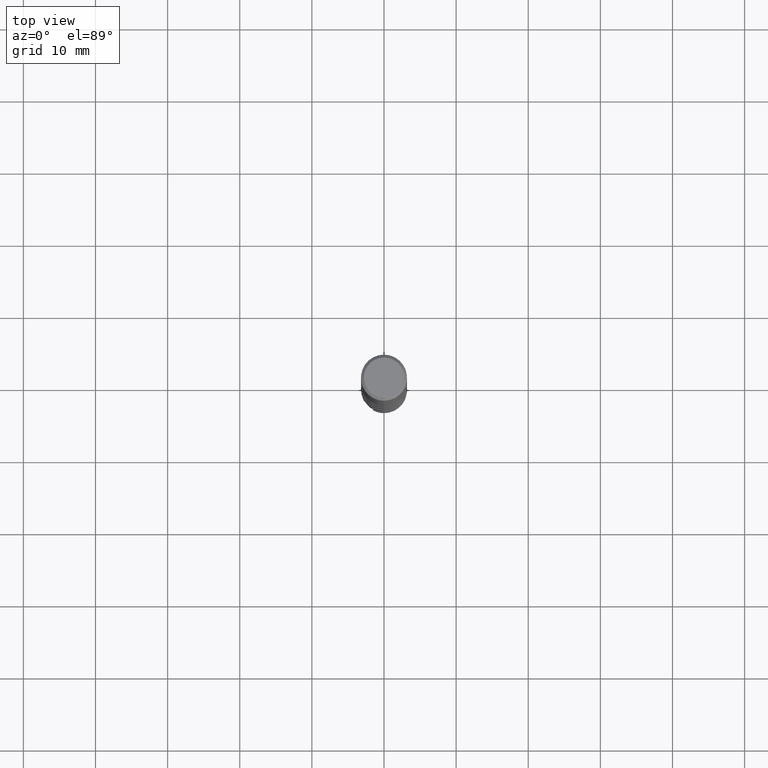
[diagram: clean part render]
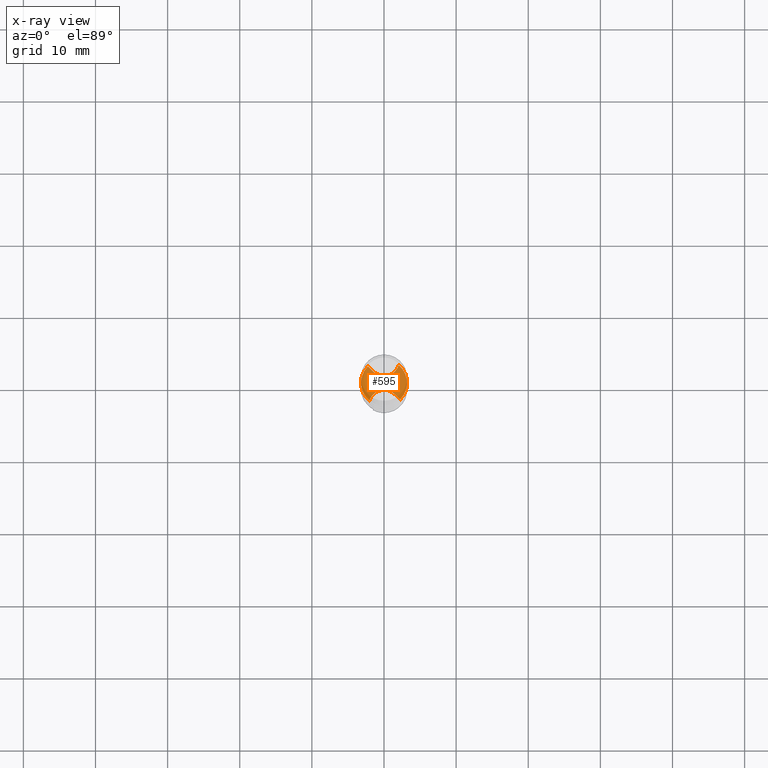
[diagram: x-ray — body ghosted, one internal face saturated and labeled with its STEP entity id]
A machine part, top view, then the same camera in x-ray: the body is ghosted and one INTERNAL B-rep face — a face not visible from any outside direction — is saturated and labeled: STEP entity #595.
In plain terms, the highlighted planar face has unit normal (-0, 0, 1).
Its self-contained STEP definition (entity closure, byte-faithful):
#419=EDGE_CURVE('',#663,#687,#929,.T.);
#447=EDGE_CURVE('',#495,#657,#962,.T.);
#495=VERTEX_POINT('',#1016);
#507=EDGE_CURVE('',#727,#687,#1028,.T.);
#595=ADVANCED_FACE('',(#1124),#1125,.T.);
#633=EDGE_CURVE('',#727,#495,#1166,.T.);
#649=VERTEX_POINT('',#1183);
#657=VERTEX_POINT('',#1191);
#663=VERTEX_POINT('',#1198);
#687=VERTEX_POINT('',#1224);
#727=VERTEX_POINT('',#1269);
#733=EDGE_CURVE('',#649,#663,#1275,.T.);
#743=EDGE_CURVE('',#649,#657,#1286,.T.);
#929=B_SPLINE_CURVE_WITH_KNOTS('',3,(#3138,#3139,#3140,#3141),.UNSPECIFIED.,.F.,.F.,(4,4),(0.0,2.34309740763965),.UNSPECIFIED.);
#962=B_SPLINE_CURVE_WITH_KNOTS('',3,(#3586,#3587,#3588,#3589),.UNSPECIFIED.,.F.,.F.,(4,4),(0.0,2.34309740804777),.UNSPECIFIED.);
#1016=CARTESIAN_POINT('',(-1.51161946410356,1.5851797061786,-42.8384));
#1028=CIRCLE('',#5263,3.1999);
#1124=FACE_OUTER_BOUND('',#6103,.T.);
#1125=PLANE('',#6104);
#1166=B_SPLINE_CURVE_WITH_KNOTS('',3,(#6763,#6764,#6765,#6766,#6767,#6768,#6769,#6770,#6771,#6772,#6773,#6774,#6775,#6776,#6777,#6778),.UNSPECIFIED.,.F.,.F.,(4,2,2,2,2,2,2,4),(0.0,0.83331702239069,1.66646418764011,2.49958122813467,3.33279055715981,4.1661593288044,4.68207226805737,5.19800103060885),.UNSPECIFIED.);
#1183=CARTESIAN_POINT('',(-2.03668443014752,-2.46805116275872,-42.8384));
#1191=CARTESIAN_POINT('',(-2.22549643507666,2.29924457756479,-42.8384));
#1198=CARTESIAN_POINT('',(1.51161946410356,-1.5851797061786,-42.8384));
#1224=CARTESIAN_POINT('',(2.22549643507665,-2.29924457756479,-42.8384));
#1269=CARTESIAN_POINT('',(2.03668443014753,2.46805116275871,-42.8384));
#1275=B_SPLINE_CURVE_WITH_KNOTS('',3,(#8685,#8686,#8687,#8688,#8689,#8690,#8691,#8692,#8693,#8694,#8695,#8696,#8697,#8698,#8699,#8700),.UNSPECIFIED.,.F.,.F.,(4,2,2,2,2,2,2,4),(0.0,0.833317022390688,1.6664641876401,2.49958122813468,3.33279055715985,4.16615932880445,4.68207226805741,5.19800103060889),.UNSPECIFIED.);
#1286=CIRCLE('',#8755,3.1999);
#3138=CARTESIAN_POINT('',(1.51161946417428,-1.5851797061079,-42.8384));
#3139=CARTESIAN_POINT('',(2.063823879758,-2.13752199253466,-42.8384));
#3140=CARTESIAN_POINT('',(2.62327024782632,-2.69712449509667,-42.8384));
#3141=CARTESIAN_POINT('',(3.17586762767081,-3.2499,-42.8384));
#3586=CARTESIAN_POINT('',(-1.51161946417428,1.5851797061079,-42.8384));
#3587=CARTESIAN_POINT('',(-2.06382387985418,2.13752199263086,-42.8384));
#3588=CARTESIAN_POINT('',(-2.62327024786371,2.69712449513407,-42.8384));
#3589=CARTESIAN_POINT('',(-3.17586762767081,3.2499,-42.8384));
#5263=AXIS2_PLACEMENT_3D('',#9070,#9071,#9072);
#6103=EDGE_LOOP('',(#9183,#9184,#9185,#9186,#9187,#9188));
#6104=AXIS2_PLACEMENT_3D('',#9189,#9190,#9191);
#6763=CARTESIAN_POINT('',(2.12442882269263,3.2499,-42.8384));
#6764=CARTESIAN_POINT('',(2.14488780719329,2.97288212464718,-42.8384));
#6765=CARTESIAN_POINT('',(2.111045236099,2.69451955023842,-42.8384));
#6766=CARTESIAN_POINT('',(1.93856050737013,2.16649152415213,-42.8384));
#6767=CARTESIAN_POINT('',(1.80159046015123,1.92187455247975,-42.8384));
#6768=CARTESIAN_POINT('',(1.44159237220009,1.49891955914242,-42.8384));
#6769=CARTESIAN_POINT('',(1.22201305530018,1.3246273668425,-42.8384));
#6770=CARTESIAN_POINT('',(0.728376161632045,1.06999836745232,-42.8384));
#6771=CARTESIAN_POINT('',(0.459035875639768,0.992108123411585,-42.8384));
#6772=CARTESIAN_POINT('',(-0.0943967075124395,0.943933309707697,-42.8384));
#6773=CARTESIAN_POINT('',(-0.373198783624473,0.974129835856021,-42.8384));
#6774=CARTESIAN_POINT('',(-0.80253013487788,1.10814504568288,-42.8384));
#6775=CARTESIAN_POINT('',(-0.959894585121616,1.17904648866195,-42.8384));
#6776=CARTESIAN_POINT('',(-1.25418249336635,1.35707741324135,-42.8384));
#6777=CARTESIAN_POINT('',(-1.39002985733367,1.46355738704523,-42.8384));
#6778=CARTESIAN_POINT('',(-1.51161946410356,1.58517970617859,-42.8384));
#8685=CARTESIAN_POINT('',(-2.12442882269263,-3.2499,-42.8384));
#8686=CARTESIAN_POINT('',(-2.14488780719329,-2.97288212464718,-42.8384));
#8687=CARTESIAN_POINT('',(-2.111045236099,-2.69451955023843,-42.8384));
#8688=CARTESIAN_POINT('',(-1.93856050737013,-2.16649152415213,-42.8384));
#8689=CARTESIAN_POINT('',(-1.80159046015122,-1.92187455247975,-42.8384));
#8690=CARTESIAN_POINT('',(-1.44159237220009,-1.49891955914242,-42.8384));
#8691=CARTESIAN_POINT('',(-1.22201305530017,-1.3246273668425,-42.8384));
#8692=CARTESIAN_POINT('',(-0.728376161632045,-1.06999836745232,-42.8384));
#8693=CARTESIAN_POINT('',(-0.459035875639772,-0.992108123411588,-42.8384));
#8694=CARTESIAN_POINT('',(0.0943967075124402,-0.943933309707701,-42.8384));
#8695=CARTESIAN_POINT('',(0.373198783624471,-0.974129835856023,-42.8384));
#8696=CARTESIAN_POINT('',(0.802530134877881,-1.10814504568289,-42.8384));
#8697=CARTESIAN_POINT('',(0.959894585121617,-1.17904648866195,-42.8384));
#8698=CARTESIAN_POINT('',(1.25418249336636,-1.35707741324135,-42.8384));
#8699=CARTESIAN_POINT('',(1.39002985733367,-1.46355738704523,-42.8384));
#8700=CARTESIAN_POINT('',(1.51161946410356,-1.5851797061786,-42.8384));
#8755=AXIS2_PLACEMENT_3D('',#9337,#9338,#9339);
#9070=CARTESIAN_POINT('',(0.0,0.0,-42.8384));
#9071=DIRECTION('',(0.0,0.0,-1.0));
#9072=DIRECTION('',(0.0,1.0,0.0));
#9183=ORIENTED_EDGE('',*,*,#419,.T.);
#9184=ORIENTED_EDGE('',*,*,#507,.F.);
#9185=ORIENTED_EDGE('',*,*,#633,.T.);
#9186=ORIENTED_EDGE('',*,*,#447,.T.);
#9187=ORIENTED_EDGE('',*,*,#743,.F.);
#9188=ORIENTED_EDGE('',*,*,#733,.T.);
#9189=CARTESIAN_POINT('',(0.0,1.59995,-42.8384));
#9190=DIRECTION('',(-0.0,0.0,1.0));
#9191=DIRECTION('',(0.0,-1.0,0.0));
#9337=CARTESIAN_POINT('',(0.0,0.0,-42.8384));
#9338=DIRECTION('',(0.0,0.0,-1.0));
#9339=DIRECTION('',(0.0,1.0,0.0));